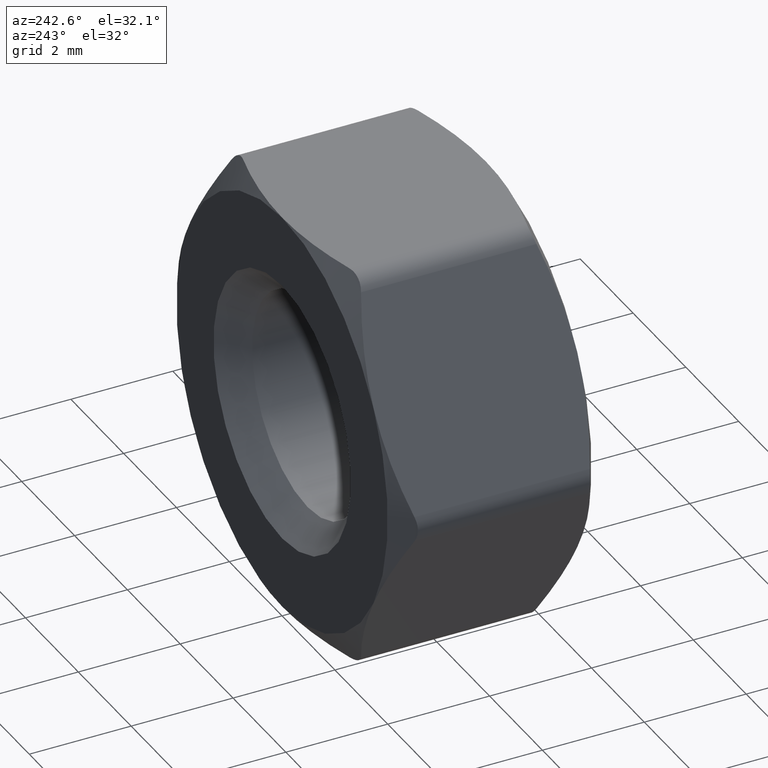
[diagram: clean part render]
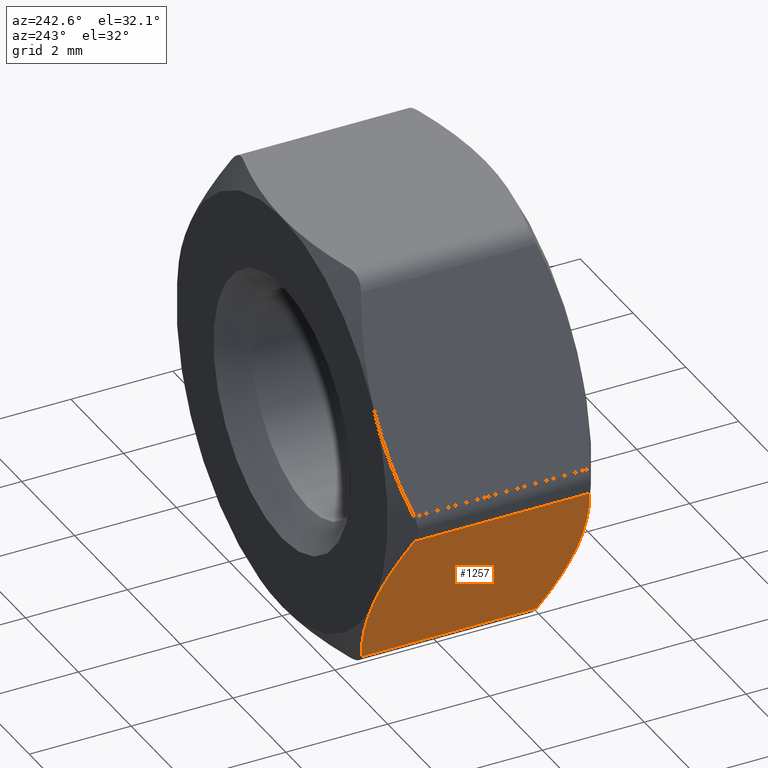
[diagram: same view with one face highlighted and labeled with its STEP entity id]
A machine part, auxiliary view. The second image highlights one B-rep face of the part: STEP entity #1257.
In plain terms, the highlighted planar face has unit normal (0.866, -0, 0.5).
Its self-contained STEP definition (entity closure, byte-faithful):
#29 = CARTESIAN_POINT ( 'NONE',  ( -4.474464586219602000, 2.000000000000000000, -0.2500000000000002200 ) ) ;
#31 = DIRECTION ( 'NONE',  ( 0.4999999999999998300, 0.0000000000000000000, -0.8660254037844387100 ) ) ;
#47 = EDGE_CURVE ( 'NONE', #1224, #375, #467, .T. ) ;
#72 = VERTEX_POINT ( 'NONE', #928 ) ;
#101 = CARTESIAN_POINT ( 'NONE',  ( -2.784799980754702800, -1.894410877657313400, -3.176584944416027700 ) ) ;
#148 = PLANE ( 'NONE',  #1062 ) ;
#162 = CARTESIAN_POINT ( 'NONE',  ( -3.464101615137756600, 1.999999999999998700, -1.999999999999998700 ) ) ;
#185 = VERTEX_POINT ( 'NONE', #801 ) ;
#215 = B_SPLINE_CURVE_WITH_KNOTS ( 'NONE', 3,
 ( #1437, #101, #1355, #1627 ),
 .UNSPECIFIED., .F., .F.,
 ( 4, 4 ),
 ( 0.0002972568722511851500, 0.002336974151641549900 ),
 .UNSPECIFIED. ) ;
#225 = EDGE_CURVE ( 'NONE', #367, #329, #546, .T. ) ;
#228 = CARTESIAN_POINT ( 'NONE',  ( -3.464101615137756600, 1.999999999999998700, -1.999999999999998700 ) ) ;
#244 = CARTESIAN_POINT ( 'NONE',  ( -3.464101615137756600, -1.999999999999998700, -1.999999999999998700 ) ) ;
#278 = CARTESIAN_POINT ( 'NONE',  ( -2.309401076758504700, 2.000000000000000000, -4.000000000000001800 ) ) ;
#284 = VECTOR ( 'NONE', #1099, 1000.000000000000000 ) ;
#301 = CARTESIAN_POINT ( 'NONE',  ( -4.474464586219602000, -1.722038627381834000, -0.2500000000000001100 ) ) ;
#329 = VERTEX_POINT ( 'NONE', #1686 ) ;
#367 = VERTEX_POINT ( 'NONE', #301 ) ;
#375 = VERTEX_POINT ( 'NONE', #1138 ) ;
#378 = CARTESIAN_POINT ( 'NONE',  ( -3.807544760618615700, 2.000000000000000000, -1.405139022515882400 ) ) ;
#381 = DIRECTION ( 'NONE',  ( -0.0000000000000000000, 1.000000000000000000, -0.0000000000000000000 ) ) ;
#391 = LINE ( 'NONE', #433, #284 ) ;
#403 = CARTESIAN_POINT ( 'NONE',  ( -3.121991427988901200, 1.974036377689812000, -2.592552225928715700 ) ) ;
#433 = CARTESIAN_POINT ( 'NONE',  ( -2.453738644055911700, 2.000000000000000000, -3.750000000000002200 ) ) ;
#467 = B_SPLINE_CURVE_WITH_KNOTS ( 'NONE', 3,
 ( #162, #1240, #403, #1342, #1055, #1196 ),
 .UNSPECIFIED., .F., .F.,
 ( 4, 2, 4 ),
 ( 0.002336974151641545600, 0.003352693107047605500, 0.004368412062453665000 ),
 .UNSPECIFIED. ) ;
#541 = B_SPLINE_CURVE_WITH_KNOTS ( 'NONE', 3,
 ( #1034, #1191, #378, #228 ),
 .UNSPECIFIED., .F., .F.,
 ( 4, 4 ),
 ( 0.0002972568722511861300, 0.002336974151641545600 ),
 .UNSPECIFIED. ) ;
#546 = LINE ( 'NONE', #29, #1566 ) ;
#566 = DIRECTION ( 'NONE',  ( 0.8660254037844387100, -0.0000000000000000000, 0.4999999999999998300 ) ) ;
#730 = EDGE_CURVE ( 'NONE', #185, #72, #215, .T. ) ;
#772 = B_SPLINE_CURVE_WITH_KNOTS ( 'NONE', 3,
 ( #244, #1185, #1626, #777, #1736, #1333 ),
 .UNSPECIFIED., .F., .F.,
 ( 4, 2, 4 ),
 ( 0.002336974151641549900, 0.003352693107047607200, 0.004368412062453664100 ),
 .UNSPECIFIED. ) ;
#777 = CARTESIAN_POINT ( 'NONE',  ( -4.142813534267780500, -1.877925064878675400, -0.8244364723642198000 ) ) ;
#801 = CARTESIAN_POINT ( 'NONE',  ( -2.453738644053332000, -1.722038627380491100, -3.750000000004468900 ) ) ;
#841 = CARTESIAN_POINT ( 'NONE',  ( -3.464101615137756600, 1.999999999999998700, -1.999999999999998700 ) ) ;
#928 = CARTESIAN_POINT ( 'NONE',  ( -3.464101615137756600, -1.999999999999998700, -1.999999999999998700 ) ) ;
#1017 = ORIENTED_EDGE ( 'NONE', *, *, #1744, .T. ) ;
#1034 = CARTESIAN_POINT ( 'NONE',  ( -4.474464586222180400, 1.722038627380490800, -0.2499999999955336300 ) ) ;
#1046 = ORIENTED_EDGE ( 'NONE', *, *, #1641, .T. ) ;
#1048 = ORIENTED_EDGE ( 'NONE', *, *, #730, .T. ) ;
#1055 = CARTESIAN_POINT ( 'NONE',  ( -2.618897511130731500, 1.808031168384830700, -3.463936450905898300 ) ) ;
#1062 = AXIS2_PLACEMENT_3D ( 'NONE', #278, #566, #31 ) ;
#1099 = DIRECTION ( 'NONE',  ( 0.0000000000000000000, -1.000000000000000000, 0.0000000000000000000 ) ) ;
#1138 = CARTESIAN_POINT ( 'NONE',  ( -2.453738644055911200, 1.722038627381834000, -3.750000000000002200 ) ) ;
#1185 = CARTESIAN_POINT ( 'NONE',  ( -3.635126156869076900, -1.999999999999999600, -1.703776804380171800 ) ) ;
#1191 = CARTESIAN_POINT ( 'NONE',  ( -4.143403249520810400, 1.894410877657313600, -0.8234150555839736500 ) ) ;
#1196 = CARTESIAN_POINT ( 'NONE',  ( -2.453738644055911200, 1.722038627381834000, -3.750000000000002200 ) ) ;
#1224 = VERTEX_POINT ( 'NONE', #841 ) ;
#1240 = CARTESIAN_POINT ( 'NONE',  ( -3.293077073406437200, 2.000000000000000000, -2.296223195619828700 ) ) ;
#1257 = ADVANCED_FACE ( 'NONE', ( #1698 ), #148, .F. ) ;
#1283 = ORIENTED_EDGE ( 'NONE', *, *, #47, .T. ) ;
#1299 = EDGE_CURVE ( 'NONE', #375, #185, #391, .T. ) ;
#1333 = CARTESIAN_POINT ( 'NONE',  ( -4.474464586219602000, -1.722038627381834000, -0.2500000000000001100 ) ) ;
#1342 = CARTESIAN_POINT ( 'NONE',  ( -2.785389696007732700, 1.877925064878675400, -3.175563527635780300 ) ) ;
#1355 = CARTESIAN_POINT ( 'NONE',  ( -3.120658469656898400, -2.000000000000000000, -2.594860977484116900 ) ) ;
#1415 = ORIENTED_EDGE ( 'NONE', *, *, #225, .T. ) ;
#1437 = CARTESIAN_POINT ( 'NONE',  ( -2.453738644053332000, -1.722038627380491100, -3.750000000004468900 ) ) ;
#1566 = VECTOR ( 'NONE', #381, 1000.000000000000000 ) ;
#1626 = CARTESIAN_POINT ( 'NONE',  ( -3.806211802286613800, -1.974036377689811500, -1.407447774071284300 ) ) ;
#1627 = CARTESIAN_POINT ( 'NONE',  ( -3.464101615137756600, -1.999999999999998700, -1.999999999999998700 ) ) ;
#1641 = EDGE_CURVE ( 'NONE', #72, #367, #772, .T. ) ;
#1686 = CARTESIAN_POINT ( 'NONE',  ( -4.474464586222180400, 1.722038627380490800, -0.2499999999955336300 ) ) ;
#1698 = FACE_OUTER_BOUND ( 'NONE', #1755, .T. ) ;
#1702 = ORIENTED_EDGE ( 'NONE', *, *, #1299, .T. ) ;
#1736 = CARTESIAN_POINT ( 'NONE',  ( -4.309305719144781200, -1.808031168384830000, -0.5360635490941040300 ) ) ;
#1744 = EDGE_CURVE ( 'NONE', #329, #1224, #541, .T. ) ;
#1755 = EDGE_LOOP ( 'NONE', ( #1046, #1415, #1017, #1283, #1702, #1048 ) ) ;